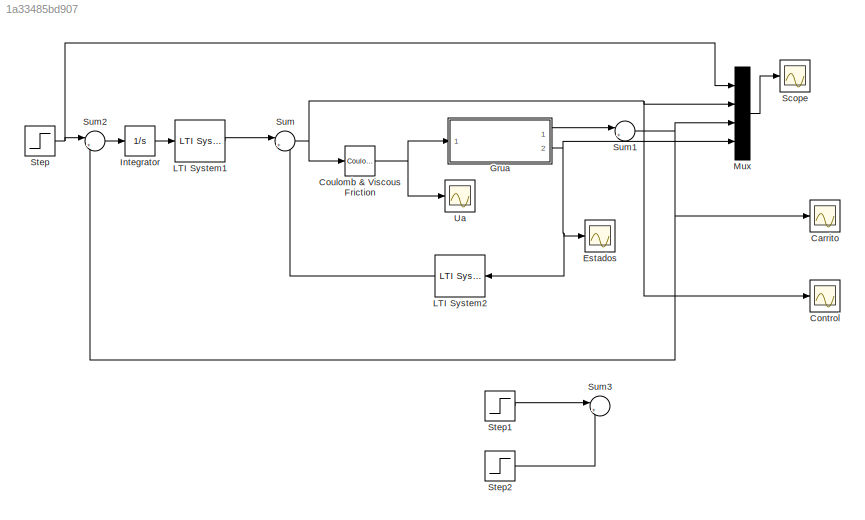
MODEL slx_1a33485bd907
KIND model
CONFIG AbsTol = auto
CONFIG EnableMultiTasking = off
CONFIG FixedStep = auto
CONFIG MaxStep = auto
CONFIG MinStep = auto
CONFIG RelTol = 1e-3
CONFIG SampleTimeConstraint = Unconstrained
CONFIG SolverName = VariableStepAuto
CONFIG StartTime = 0.0
CONFIG StopTime = 50
BLOCK [Scope] Carrito
  Floating = off
  NumInputPorts = 1
  Ports = [1]
  ScopeSpecificationString = Simulink.scopes.TimeScopeBlockCfg('CurrentConfiguration', extmgr.ConfigurationSet(extmgr.Configuration('Core','General UI',true),extmgr.Configuration('Core','Source UI',true),extmgr.Configuration('Sources','WiredSimulink',true,'DataLoggingVariableName','ScopeData3'),extmgr.Configuration('Visuals','Time Domain',true,'SerializedDisplays',{struct('MinYLimReal','-0.06366','MaxYLimReal','0.57295','YLab...<+1427ch>
BLOCK [Scope] Control
  Floating = off
  NumInputPorts = 1
  Ports = [1]
  ScopeSpecificationString = Simulink.scopes.TimeScopeBlockCfg('CurrentConfiguration', extmgr.ConfigurationSet(extmgr.Configuration('Core','General UI',true),extmgr.Configuration('Core','Source UI',true),extmgr.Configuration('Sources','WiredSimulink',true,'DataLoggingVariableName','ScopeData4'),extmgr.Configuration('Visuals','Time Domain',true,'SerializedDisplays',{struct('MinYLimReal','-1.10065','MaxYLimReal','7.72787','YLab...<+1426ch>
BLOCK [Reference] Coulomb & Viscous Friction  REF=simulink/Discontinuities/Coulomb &
Viscous Friction
  Ports = [1, 1]
  SourceBlock = simulink/Discontinuities/Coulomb &\nViscous Friction
  SourceProductBaseCode = SL
  SourceType = Coulombic and Viscous Friction
BLOCK [Scope] Estados
  Floating = off
  NumInputPorts = 1
  Ports = [1]
  ScopeSpecificationString = Simulink.scopes.TimeScopeBlockCfg('CurrentConfiguration', extmgr.ConfigurationSet(extmgr.Configuration('Core','General UI',true),extmgr.Configuration('Core','Source UI',true),extmgr.Configuration('Sources','WiredSimulink',true,'DataLoggingVariableName','ScopeData1'),extmgr.Configuration('Visuals','Time Domain',true,'SerializedDisplays',{struct('MinYLimReal','-0.42476','MaxYLimReal','2.38602','YLab...<+1400ch>
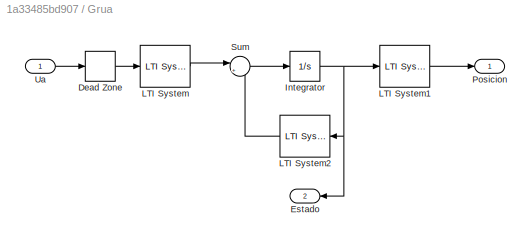
BLOCK [SubSystem] Grua
  Ports = [1, 2]
  RequestExecContextInheritance = off
BLOCK [DeadZone] Grua/Dead Zone
  UpperValue = 0.6
BLOCK [Outport] Grua/Estado
  NameLocation = top
  Port = 2
BLOCK [Integrator] Grua/Integrator
  Ports = [1, 1]
BLOCK [Reference] Grua/LTI System  REF=cstblocks/LTI System
  Ports = [1, 1]
  SourceBlock = cstblocks/LTI System
  SourceProductBaseCode = CT
  SourceType = LTI Block
BLOCK [Reference] Grua/LTI System1  REF=cstblocks/LTI System
  Ports = [1, 1]
  SourceBlock = cstblocks/LTI System
  SourceProductBaseCode = CT
  SourceType = LTI Block
BLOCK [Reference] Grua/LTI System2  REF=cstblocks/LTI System
  NameLocation = top
  Ports = [1, 1]
  SourceBlock = cstblocks/LTI System
  SourceProductBaseCode = CT
  SourceType = LTI Block
BLOCK [Outport] Grua/Posicion
BLOCK [Sum] Grua/Sum
  Inputs = |++
  Ports = [2, 1]
BLOCK [Inport] Grua/Ua
BLOCK [Integrator] Integrator
  Ports = [1, 1]
BLOCK [Reference] LTI System1  REF=cstblocks/LTI System
  Ports = [1, 1]
  SourceBlock = cstblocks/LTI System
  SourceProductBaseCode = CT
  SourceType = LTI Block
BLOCK [Reference] LTI System2  REF=cstblocks/LTI System
  NameLocation = top
  Ports = [1, 1]
  SourceBlock = cstblocks/LTI System
  SourceProductBaseCode = CT
  SourceType = LTI Block
BLOCK [Mux] Mux
  DisplayOption = bar
  Ports = [4, 1]
BLOCK [Scope] Scope
  Floating = off
  NumInputPorts = 1
  Ports = [1]
  ScopeSpecificationString = Simulink.scopes.TimeScopeBlockCfg('CurrentConfiguration', extmgr.ConfigurationSet(extmgr.Configuration('Core','General UI',true),extmgr.Configuration('Core','Source UI',true),extmgr.Configuration('Sources','WiredSimulink',true,'DataLoggingVariableName','ScopeData1'),extmgr.Configuration('Visuals','Time Domain',true,'SerializedDisplays',{struct('MinYLimReal','-0.4','MaxYLimReal','1','YLabelReal',''...<+2021ch>
BLOCK [Step] Step
  After = 0.5
  SampleTime = 0
BLOCK [Step] Step1
  After = 8
  SampleTime = 0
  Time = 0.1
BLOCK [Step] Step2
  After = 10
  SampleTime = 0
  Time = 0.1
BLOCK [Sum] Sum
  Inputs = |++
  Ports = [2, 1]
BLOCK [Sum] Sum1
  Inputs = |++
  Ports = [2, 1]
BLOCK [Sum] Sum2
  Inputs = |+-
  Ports = [2, 1]
BLOCK [Sum] Sum3
  Inputs = |+-
  Ports = [2, 1]
BLOCK [Scope] Ua
  Floating = off
  NumInputPorts = 1
  Ports = [1]
  ScopeSpecificationString = Simulink.scopes.TimeScopeBlockCfg('CurrentConfiguration', extmgr.ConfigurationSet(extmgr.Configuration('Core','General UI',true),extmgr.Configuration('Core','Source UI',true),extmgr.Configuration('Sources','WiredSimulink',true),extmgr.Configuration('Visuals','Time Domain',true,'SerializedDisplays',{struct('MinYLimReal','-6.80113','MaxYLimReal','1.84024','YLabelReal','','MinYLimMag','0.00000','MaxY...<+1346ch>
NET Coulomb & Viscous Friction:1 -> Grua:1, Ua:1
LINE Grua/Dead Zone:1 -> Grua/LTI System:1
NET Grua/Integrator:1 -> Grua/Estado:1, Grua/LTI System1:1, Grua/LTI System2:1
LINE Grua/LTI System1:1 -> Grua/Posicion:1
LINE Grua/LTI System2:1 -> Grua/Sum:2
LINE Grua/LTI System:1 -> Grua/Sum:1
LINE Grua/Sum:1 -> Grua/Integrator:1
LINE Grua/Ua:1 -> Grua/Dead Zone:1
LINE Grua:1 -> Sum1:1
NET Grua:2 -> Estados:1, LTI System2:1, Mux:4
LINE Integrator:1 -> LTI System1:1
LINE LTI System1:1 -> Sum:1
LINE LTI System2:1 -> Sum:2
LINE Mux:1 -> Scope:1
LINE Step1:1 -> Sum3:1
LINE Step2:1 -> Sum3:2
NET Step:1 -> Mux:1, Sum2:1
NET Sum1:1 -> Carrito:1, Mux:3, Sum2:2
LINE Sum2:1 -> Integrator:1
NET Sum:1 -> Control:1, Coulomb & Viscous Friction:1, Mux:2
note: NET lines group one-source signal fan-out (src -> all destinations, sorted); 1:1 wires keep LINE
